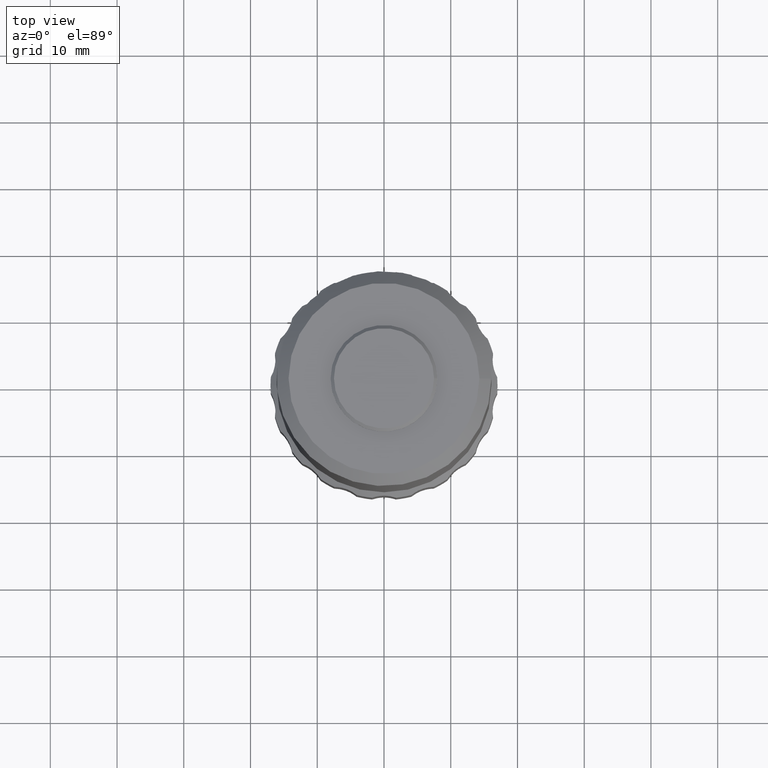
[diagram: clean part render]
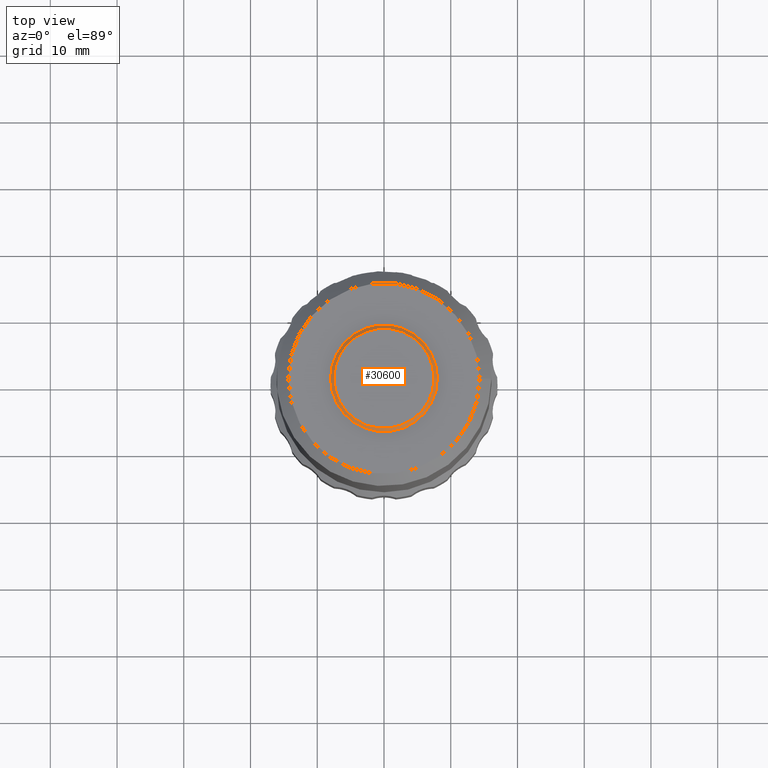
[diagram: same view with one face highlighted and labeled with its STEP entity id]
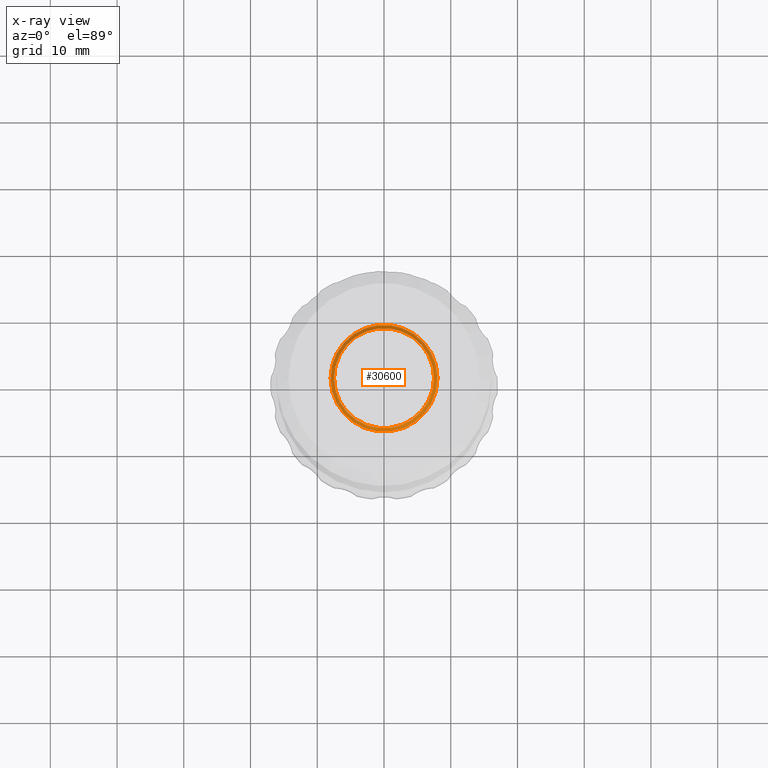
[diagram: x-ray of the same camera — body ghosted, the highlighted face saturated]
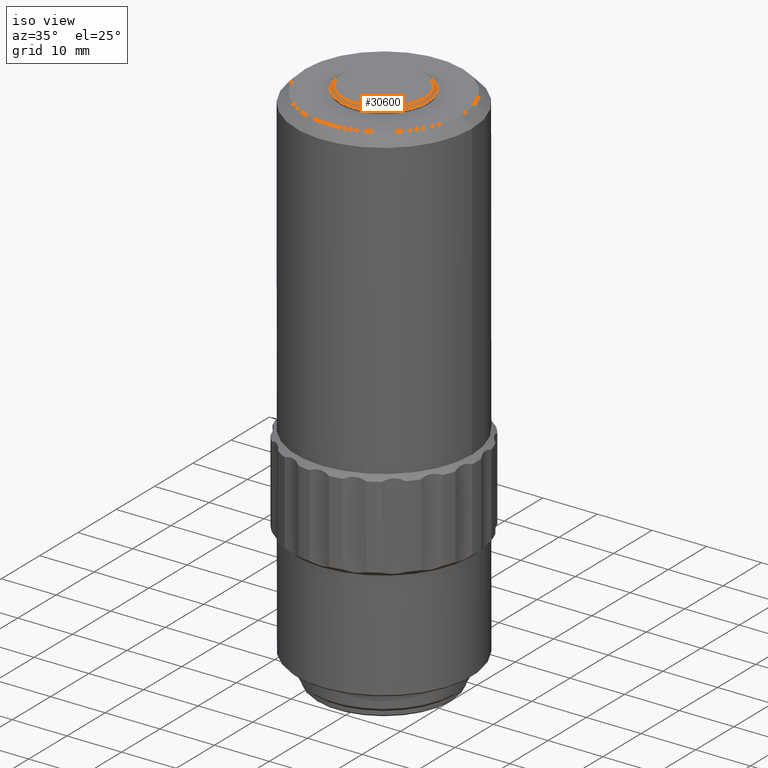
[diagram: same view with one face highlighted and labeled with its STEP entity id]
A machine part, top view. The second image highlights one B-rep face of the part: STEP entity #30600.
The next image is the same camera in x-ray: the body ghosted, the highlighted face saturated — about 0% of this face is hidden behind the body in this view.
A second angle (iso view) of the same face is appended — the face is thin or edge-on in the first view.
In plain terms, the highlighted conical surface has half-angle 45 deg.
Its self-contained STEP definition (entity closure, byte-faithful):
#1533 = FACE_OUTER_BOUND ( 'NONE', #4957, .T. ) ;
#2338 = VERTEX_POINT ( 'NONE', #12064 ) ;
#2971 = DIRECTION ( 'NONE',  ( 1.000000000000000000, 0.0000000000000000000, 0.0000000000000000000 ) ) ;
#4957 = EDGE_LOOP ( 'NONE', ( #15949 ) ) ;
#5941 = CARTESIAN_POINT ( 'NONE',  ( 0.0000000000000000000, 0.0000000000000000000, 98.05000000000004000 ) ) ;
#6514 = CARTESIAN_POINT ( 'NONE',  ( 0.0000000000000000000, 0.0000000000000000000, 98.54999999999999700 ) ) ;
#7017 = VERTEX_POINT ( 'NONE', #12180 ) ;
#8930 = ORIENTED_EDGE ( 'NONE', *, *, #25499, .F. ) ;
#9070 = DIRECTION ( 'NONE',  ( 0.0000000000000000000, 0.0000000000000000000, 1.000000000000000000 ) ) ;
#9166 = AXIS2_PLACEMENT_3D ( 'NONE', #6514, #25885, #9379 ) ;
#9314 = CIRCLE ( 'NONE', #32895, 7.500000000000046200 ) ;
#9379 = DIRECTION ( 'NONE',  ( -1.000000000000000000, 0.0000000000000000000, 0.0000000000000000000 ) ) ;
#11476 = EDGE_LOOP ( 'NONE', ( #8930 ) ) ;
#11750 = CARTESIAN_POINT ( 'NONE',  ( 0.0000000000000000000, 0.0000000000000000000, 98.54999999999999700 ) ) ;
#12064 = CARTESIAN_POINT ( 'NONE',  ( 8.000000000000000000, 0.0000000000000000000, 98.05000000000004000 ) ) ;
#12180 = CARTESIAN_POINT ( 'NONE',  ( 7.500000000000046200, 0.0000000000000000000, 98.54999999999999700 ) ) ;
#14559 = AXIS2_PLACEMENT_3D ( 'NONE', #5941, #25182, #2971 ) ;
#15949 = ORIENTED_EDGE ( 'NONE', *, *, #35566, .F. ) ;
#22800 = DIRECTION ( 'NONE',  ( 1.000000000000000000, 0.0000000000000000000, 0.0000000000000000000 ) ) ;
#24321 = FACE_BOUND ( 'NONE', #11476, .T. ) ;
#25182 = DIRECTION ( 'NONE',  ( 0.0000000000000000000, 0.0000000000000000000, -1.000000000000000000 ) ) ;
#25499 = EDGE_CURVE ( 'NONE', #7017, #7017, #9314, .T. ) ;
#25885 = DIRECTION ( 'NONE',  ( 0.0000000000000000000, 0.0000000000000000000, -1.000000000000000000 ) ) ;
#29417 = CIRCLE ( 'NONE', #14559, 8.000000000000000000 ) ;
#30600 = ADVANCED_FACE ( 'NONE', ( #1533, #24321 ), #31606, .T. ) ;
#31606 = CONICAL_SURFACE ( 'NONE', #9166, 7.500000000000046200, 0.7853981633974430600 ) ;
#32895 = AXIS2_PLACEMENT_3D ( 'NONE', #11750, #9070, #22800 ) ;
#35566 = EDGE_CURVE ( 'NONE', #2338, #2338, #29417, .T. ) ;